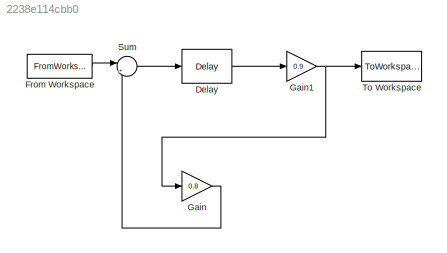
MODEL slx_2238e114cbb0
KIND model
BLOCK [Delay] Delay
  DelayLength = 1800
  InputPortMap = u0
  Ports = [1, 1]
  SampleTime = 1/Fs
BLOCK [FromWorkspace] From Workspace
  SampleTime = 0
  VariableName = [t',muneca]
  ZeroCross = on
BLOCK [Gain] Gain
  Gain = 0.8
  OutDataTypeStr = Inherit: Inherit via internal rule
  ParamDataTypeStr = Inherit: Inherit via internal rule
  SaturateOnIntegerOverflow = off
BLOCK [Gain] Gain1
  Gain = 0.9
  OutDataTypeStr = Inherit: Inherit via internal rule
  ParamDataTypeStr = Inherit: Inherit via internal rule
  SaturateOnIntegerOverflow = off
BLOCK [Sum] Sum
  IconShape = round
  InputSameDT = off
  Inputs = |++
  OutDataTypeStr = Inherit: Inherit via internal rule
  Ports = [2, 1]
  SaturateOnIntegerOverflow = off
BLOCK [ToWorkspace] To Workspace
  FixptAsFi = on
  MaxDataPoints = N
  Ports = [1]
  SampleTime = -1
  VariableName = yout
LINE Delay:1 -> Gain1:1
LINE From Workspace:1 -> Sum:1
NET Gain1:1 -> Gain:1, To Workspace:1
LINE Gain:1 -> Sum:2
LINE Sum:1 -> Delay:1
note: NET lines group one-source signal fan-out (src -> all destinations, sorted); 1:1 wires keep LINE
